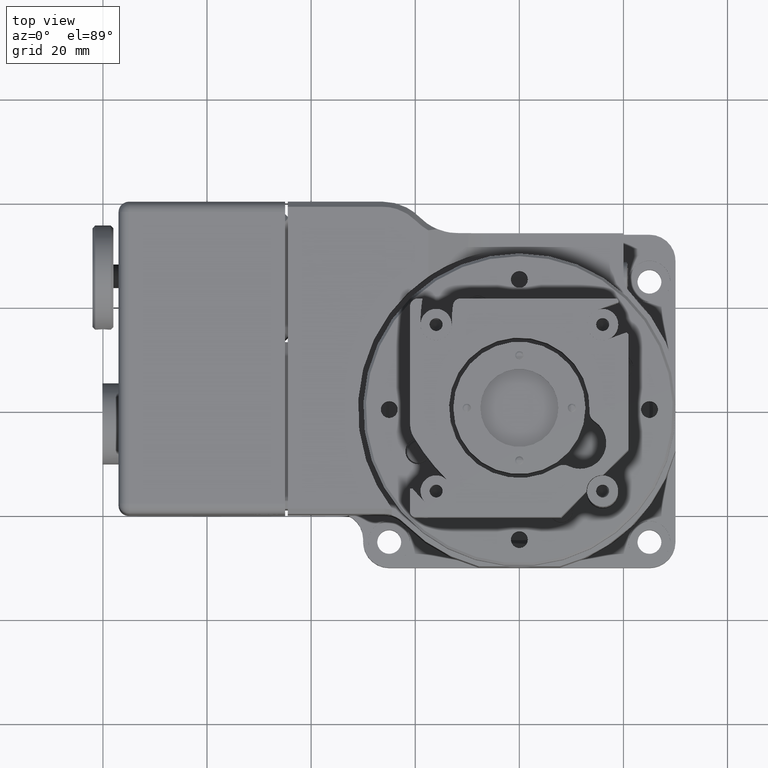
[diagram: clean part render]
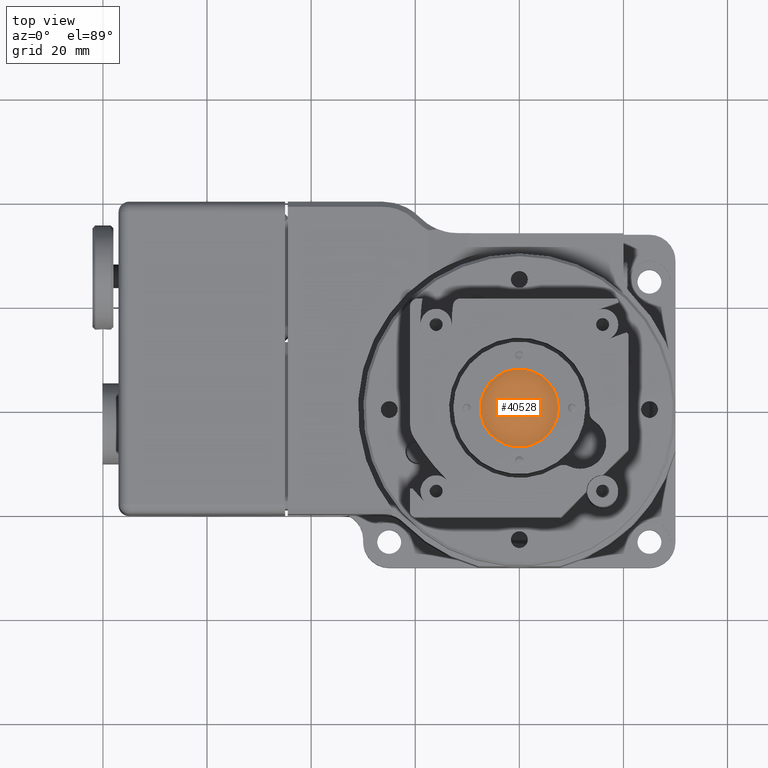
[diagram: same view with one face highlighted and labeled with its STEP entity id]
A machine part, top view. The second image highlights one B-rep face of the part: STEP entity #40528.
In plain terms, the highlighted planar face has unit normal (0, -0, 1).
Its self-contained STEP definition (entity closure, byte-faithful):
#3636 = DIRECTION ( 'NONE',  ( -1.266389822732141931E-15, 1.000000000000000000, 5.500638735984980020E-15 ) ) ;
#9381 = DIRECTION ( 'NONE',  ( 0.9895591420785299075, 4.625929269271485914E-16, 0.1441273892388400535 ) ) ;
#11113 = CIRCLE ( 'NONE', #43530, 0.2952755905511810774 ) ;
#18179 = CARTESIAN_POINT ( 'NONE',  ( 0.4334696951178386159, -0.7205265103812480421, -0.1239282588084004016 ) ) ;
#21899 = AXIS2_PLACEMENT_3D ( 'NONE', #18179, #67427, #40301 ) ;
#23605 = PLANE ( 'NONE',  #21899 ) ;
#29415 = FACE_OUTER_BOUND ( 'NONE', #53853, .T. ) ;
#30774 = CARTESIAN_POINT ( 'NONE',  ( 0.4334696951178386159, -0.7205265103812480421, -0.1239282588084004016 ) ) ;
#40301 = DIRECTION ( 'NONE',  ( 0.000000000000000000, 5.500638735984980020E-15, -1.000000000000000000 ) ) ;
#40528 = ADVANCED_FACE ( 'NONE', ( #29415 ), #23605, .T. ) ;
#43530 = AXIS2_PLACEMENT_3D ( 'NONE', #30774, #3636, #9381 ) ;
#47277 = EDGE_CURVE ( 'NONE', #55526, #55526, #11113, .T. ) ;
#47588 = ORIENTED_EDGE ( 'NONE', *, *, #47277, .F. ) ;
#53853 = EDGE_LOOP ( 'NONE', ( #47588 ) ) ;
#54813 = CARTESIAN_POINT ( 'NONE',  ( 0.7256623551803965677, -0.7205265103812479310, -0.08137095883630196536 ) ) ;
#55526 = VERTEX_POINT ( 'NONE', #54813 ) ;
#67427 = DIRECTION ( 'NONE',  ( 1.266389822732139959E-15, -1.000000000000000000, -5.500638735984980020E-15 ) ) ;